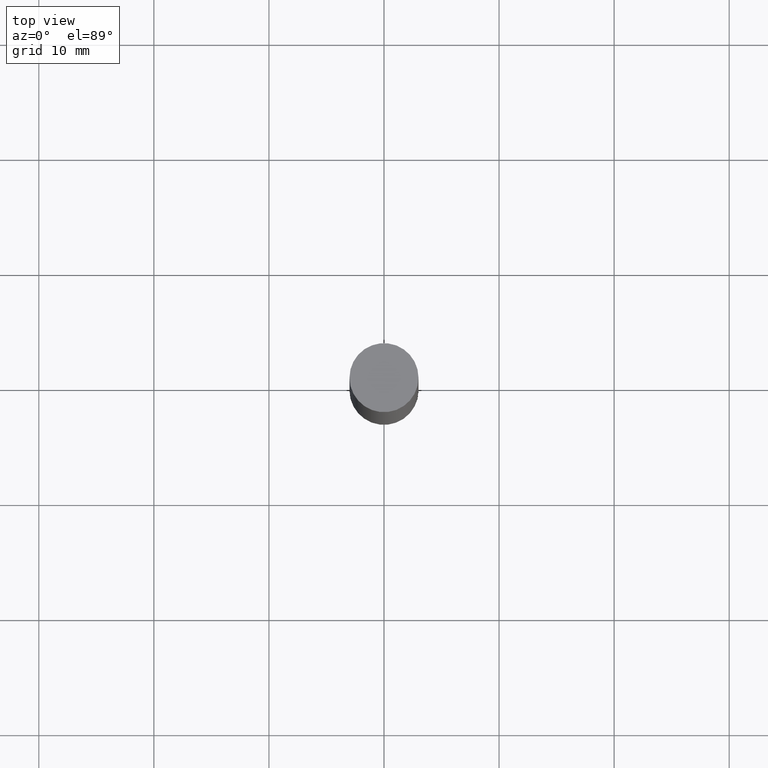
[diagram: clean part render]
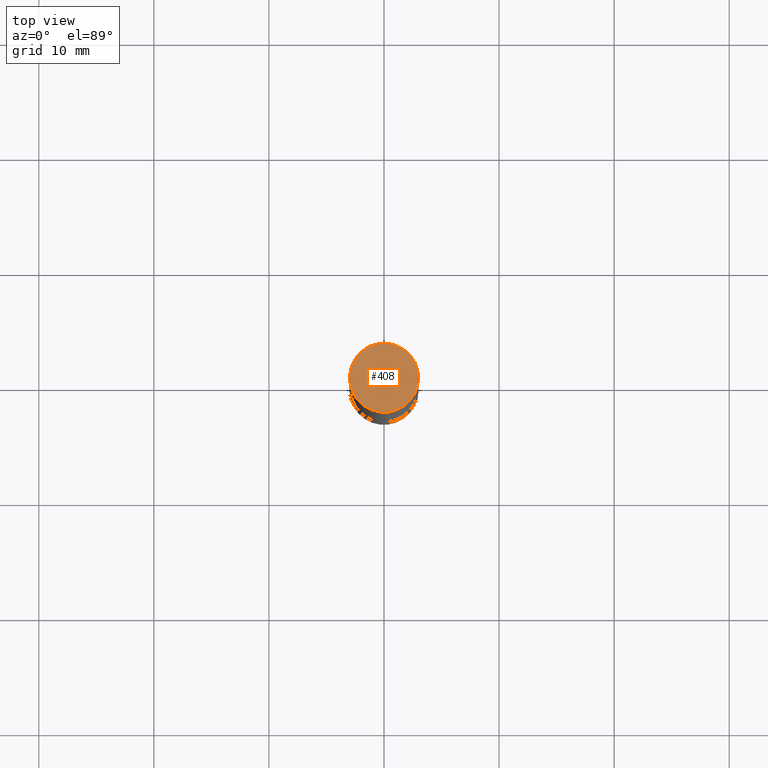
[diagram: same view with one face highlighted and labeled with its STEP entity id]
A machine part, top view. The second image highlights one B-rep face of the part: STEP entity #408.
In plain terms, the highlighted planar face has unit normal (0, 0, 1).
Its self-contained STEP definition (entity closure, byte-faithful):
#20 = PLANE ( 'NONE',  #225 ) ;
#43 = EDGE_LOOP ( 'NONE', ( #542, #612 ) ) ;
#114 = DIRECTION ( 'NONE',  ( 2.445468806185136597E-29, 3.492890411551752677E-15, 1.000000000000000000 ) ) ;
#122 = FACE_OUTER_BOUND ( 'NONE', #43, .T. ) ;
#124 = AXIS2_PLACEMENT_3D ( 'NONE', #588, #114, #264 ) ;
#150 = DIRECTION ( 'NONE',  ( 2.445468806185136597E-29, 3.492890411551752677E-15, 1.000000000000000000 ) ) ;
#157 = CARTESIAN_POINT ( 'NONE',  ( 6.065496279980994755E-29, 1.747461519580534218E-18, 5.463695987328526437E-16 ) ) ;
#160 = DIRECTION ( 'NONE',  ( 2.438088387897959769E-29, 3.492890411551753071E-15, 1.000000000000000000 ) ) ;
#203 = VERTEX_POINT ( 'NONE', #290 ) ;
#225 = AXIS2_PLACEMENT_3D ( 'NONE', #271, #160, #593 ) ;
#264 = DIRECTION ( 'NONE',  ( 1.000000000000000000, -6.982962677686266711E-15, 0.000000000000000000 ) ) ;
#271 = CARTESIAN_POINT ( 'NONE',  ( 8.246878922348086105E-16, 0.1181000000000000105, 0.000000000000000000 ) ) ;
#290 = CARTESIAN_POINT ( 'NONE',  ( -0.1180999999999999966, -1.304844015212474234E-17, 5.463695987328556019E-16 ) ) ;
#292 = EDGE_CURVE ( 'NONE', #203, #673, #452, .T. ) ;
#297 = EDGE_CURVE ( 'NONE', #673, #203, #341, .T. ) ;
#319 = AXIS2_PLACEMENT_3D ( 'NONE', #157, #150, #587 ) ;
#341 = CIRCLE ( 'NONE', #124, 0.1180999999999999966 ) ;
#373 = CARTESIAN_POINT ( 'NONE',  ( 0.1180999999999999966, -8.229404307151675296E-16, 5.463695987328526437E-16 ) ) ;
#408 = ADVANCED_FACE ( 'NONE', ( #122 ), #20, .T. ) ;
#452 = CIRCLE ( 'NONE', #319, 0.1180999999999999966 ) ;
#542 = ORIENTED_EDGE ( 'NONE', *, *, #297, .T. ) ;
#587 = DIRECTION ( 'NONE',  ( 1.000000000000000000, -6.982962677686266711E-15, 0.000000000000000000 ) ) ;
#588 = CARTESIAN_POINT ( 'NONE',  ( 6.065496279980994755E-29, 1.747461519580534218E-18, 5.463695987328526437E-16 ) ) ;
#593 = DIRECTION ( 'NONE',  ( -1.000000000000000000, 6.982962677686265922E-15, -9.839502134516470631E-33 ) ) ;
#612 = ORIENTED_EDGE ( 'NONE', *, *, #292, .T. ) ;
#673 = VERTEX_POINT ( 'NONE', #373 ) ;